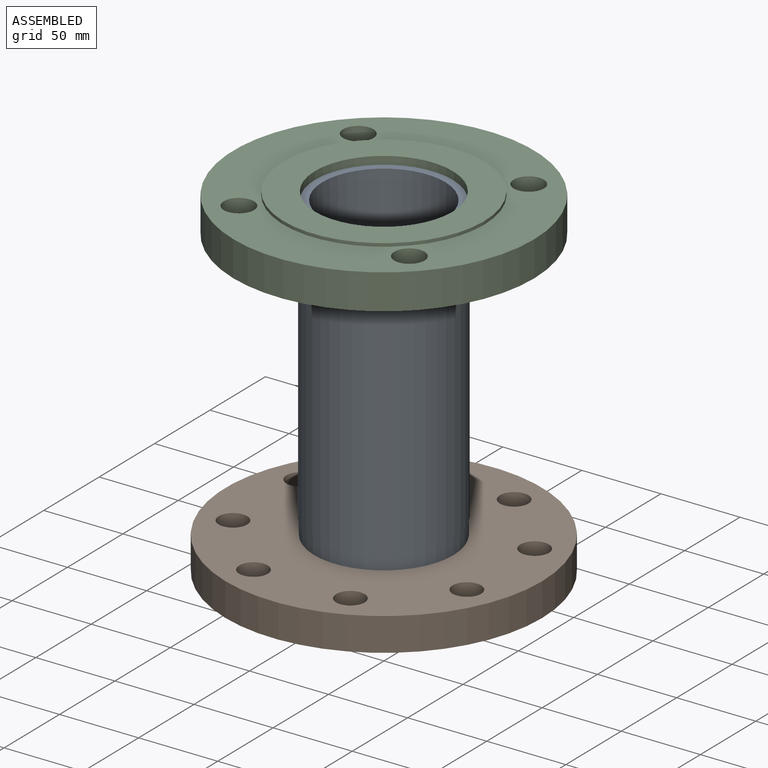
[diagram: assembled view]
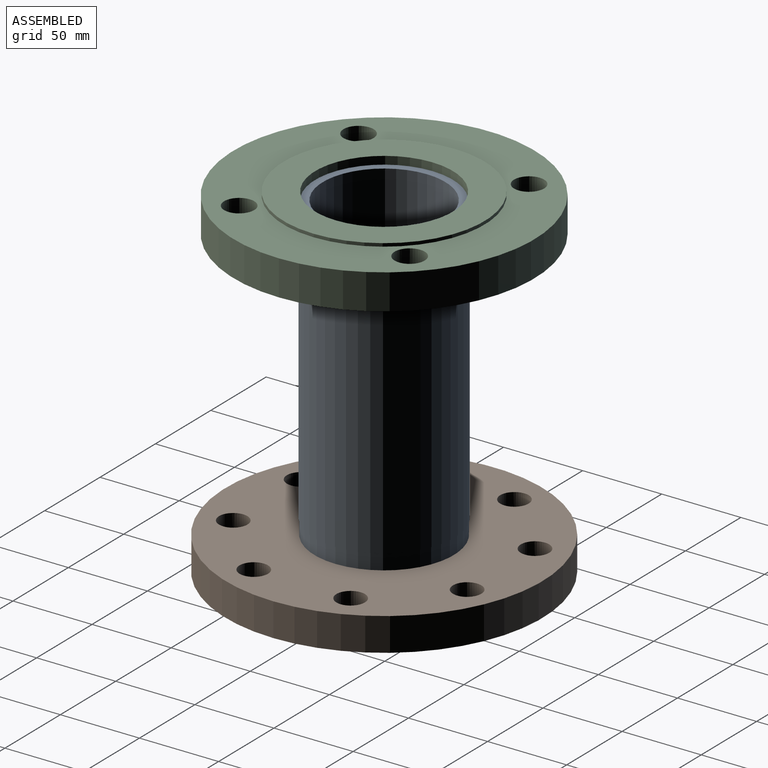
[diagram: assembled view, second angle]
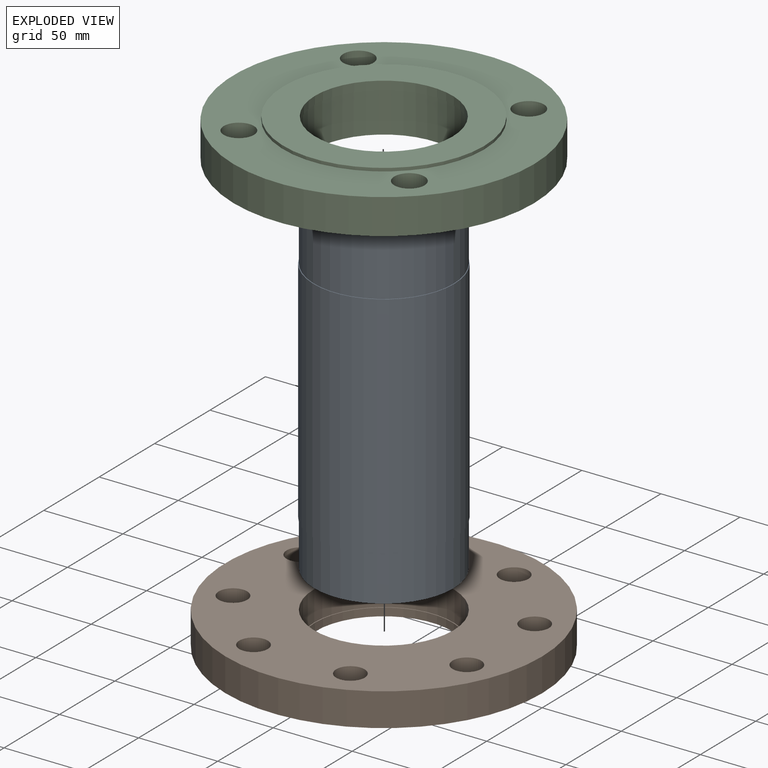
[diagram: exploded view]
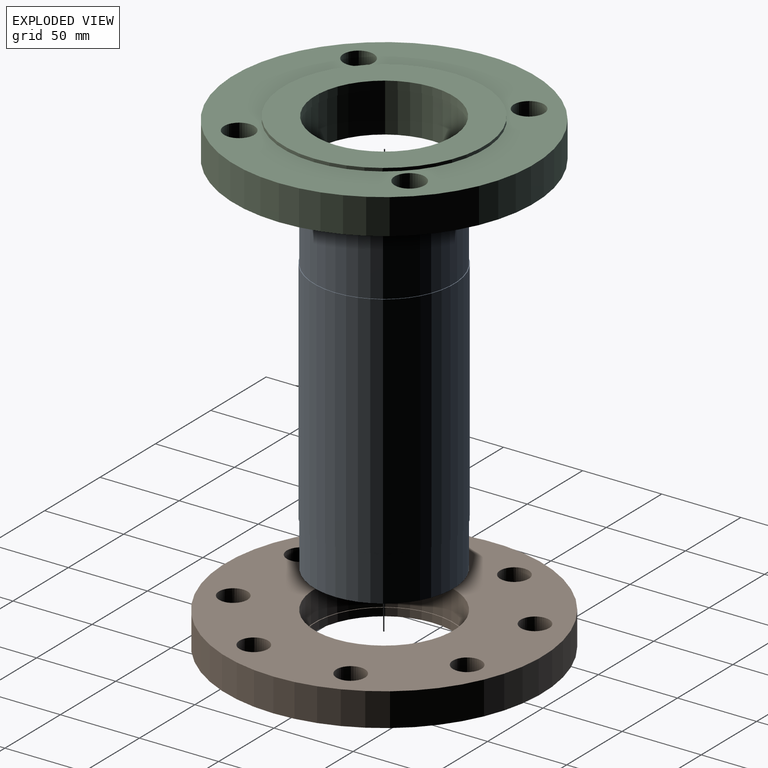
[diagram: exploded view, second angle]
ASSEMBLY  parts=3 mates=2
PART A: 8 faces, bbox 210x88.8x88.8 mm
  f0: plane 88x88mm, normal (-1,0,0), area 1377mm2, adj f1,f7
  f1: cylinder r=38.7mm len=210mm, axis (-1,0,0), area 51063.4mm2, adj f0,f2
  f2: plane 88x88mm, normal (1,0,0), area 1377mm2, adj f1,f3
  f3: cylinder r=44mm len=88mm, axis (-1,0,0), area 9952.6mm2, adj f2,f4
  f4: plane 88.8x88.8mm, normal (1,0,0), area 111.1mm2, adj f3,f5
  f5: cylinder r=44.4mm len=145mm, axis (-1,0,0), area 40451.1mm2, adj f4,f6
  f6: plane 88.8x88.8mm, normal (-1,0,0), area 111.1mm2, adj f5,f7
  f7: cylinder r=44mm len=88mm, axis (-1,0,0), area 8017.3mm2, adj f0,f6
PART B: 16 faces, bbox 200x200x24 mm
  f0: plane 88x88mm, normal (0,0,1), area 137.4mm2, adj f1,f7
  f1: cylinder r=43.5mm len=87mm, axis (0,0,1), area 1366.6mm2, adj f0,f2
  f2: plane 138x138mm, normal (0,0,-1), area 9012.4mm2, adj f1,f3
  f3: cylinder r=69mm len=138mm, axis (0,0,1), area 1300.6mm2, adj f2,f4
  f4: plane 200x200mm, normal (0,0,-1), area 14423.1mm2, adj f3,f5,f8,f9,f10,f11,f12,f13
  f5: cylinder r=100mm len=200mm, axis (0,0,1), area 13194.7mm2, adj f4,f6
  f6: plane 200x200mm, normal (0,0,1), area 23298.1mm2, adj f5,f7,f8,f9,f10,f11,f12,f13
  f7: cylinder r=44mm len=88mm, axis (0,0,1), area 5252.7mm2, adj f0,f6
  f8: cylinder r=9mm len=21mm, axis (0,0,1), area 1187.5mm2, adj f4,f6
  f9: cylinder r=9mm len=21mm, axis (0,0,1), area 1187.5mm2, adj f4,f6
  f10: cylinder r=9mm len=21mm, axis (0,0,1), area 1187.5mm2, adj f4,f6
  f11: cylinder r=9mm len=21mm, axis (0,0,1), area 1187.5mm2, adj f4,f6
  f12: cylinder r=9mm len=21mm, axis (0,0,1), area 1187.5mm2, adj f4,f6
  f13: cylinder r=9mm len=21mm, axis (0,0,1), area 1187.5mm2, adj f4,f6
  f14: cylinder r=9mm len=21mm, axis (0,0,1), area 1187.5mm2, adj f4,f6
  f15: cylinder r=9mm len=21mm, axis (0,0,1), area 1187.5mm2, adj f4,f6
PART C: 16 faces, bbox 190x190x31 mm
  f0: plane 104x104mm, normal (0,0,1), area 2412.7mm2, adj f1,f15
  f1: cylinder r=44mm len=88mm, axis (0,0,1), area 7188mm2, adj f0,f2
  f2: plane 88x88mm, normal (0,0,1), area 137.4mm2, adj f1,f3
  f3: cylinder r=43.5mm len=87mm, axis (0,0,1), area 1366.6mm2, adj f2,f4
  f4: plane 127x127mm, normal (0,0,-1), area 6723mm2, adj f3,f5
  f5: cylinder r=63.5mm len=127mm, axis (0,0,1), area 798mm2, adj f4,f6
  f6: plane 190x190mm, normal (0,0,-1), area 14545.1mm2, adj f5,f7,f10,f11,f12,f13
  f7: cylinder r=95mm len=190mm, axis (0,0,1), area 13310.9mm2, adj f6,f8
  f8: plane 190x190mm, normal (0,0,1), area 17360.7mm2, adj f7,f10,f11,f12,f13,f14
  f9: cylinder r=54mm len=108mm, axis (0,0,1), area 916.1mm2, adj f14,f15
  f10: cylinder r=9.53mm len=22.3mm, axis (0,0,1), area 1334.6mm2, adj f6,f8
  f11: cylinder r=9.53mm len=22.3mm, axis (0,0,1), area 1334.6mm2, adj f6,f8
  f12: cylinder r=9.53mm len=22.3mm, axis (0,0,1), area 1334.6mm2, adj f6,f8
  f13: cylinder r=9.53mm len=22.3mm, axis (0,0,1), area 1334.6mm2, adj f6,f8
  f14: torus R=56mm, axis (0,0,-1), area 1080.3mm2, adj f8,f9
  f15: torus R=52mm, axis (0,0,-1), area 1051.6mm2, adj f0,f9
PLACE A rot(axis=(0,-1,0),90deg) t=(0.16,-0.27,-7.55)mm
PLACE B t=(0.16,-0.27,-12.55)mm fixed
PLACE C rot(axis=(1,0,0),180deg) t=(0.16,-0.27,207.45)mm
MATE fastened C.f1 <-> A.f1  axis (0,0,1) through (0.16,-0.27,202.45)mm
MATE fastened A.f1 <-> B.f1  axis (0,0,1) through (0.16,-0.27,-7.55)mm
